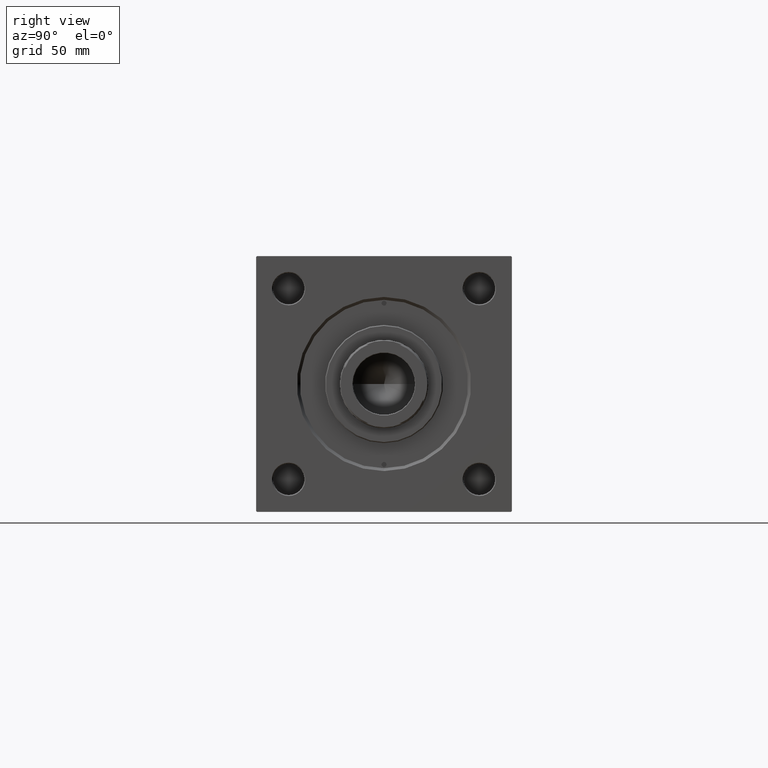
[diagram: clean part render]
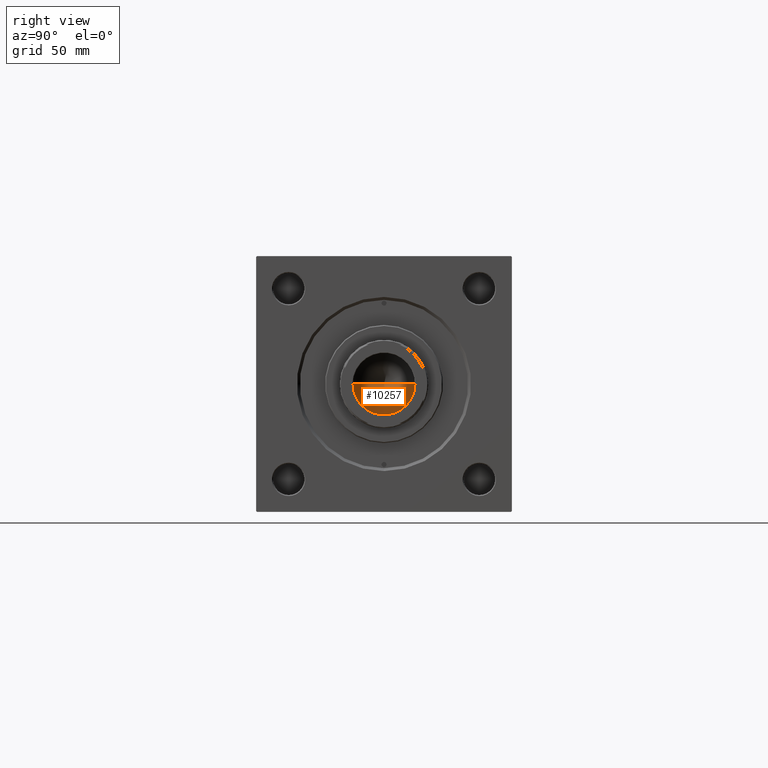
[diagram: same view with one face highlighted and labeled with its STEP entity id]
A machine part, right view. The second image highlights one B-rep face of the part: STEP entity #10257.
In plain terms, the highlighted conical surface has half-angle 59 deg.
Its self-contained STEP definition (entity closure, byte-faithful):
#9344 = CARTESIAN_POINT ( 'NONE',  ( 0.000000000000000000, 0.000000000000000000, 203.0000000000000000 ) ) ;
#9863 = FACE_OUTER_BOUND ( 'NONE', #43578, .T. ) ;
#10106 = DIRECTION ( 'NONE',  ( 1.000000000000000000, 0.000000000000000000, 0.000000000000000000 ) ) ;
#10114 = CARTESIAN_POINT ( 'NONE',  ( -15.74999999999998934, 1.928818708657080161E-15, 203.0000000000000000 ) ) ;
#10257 = ADVANCED_FACE ( 'NONE', ( #9863 ), #13053, .F. ) ;
#13053 = CONICAL_SURFACE ( 'NONE', #36832, 15.74999999999998934, 1.029744258676652313 ) ;
#14331 = DIRECTION ( 'NONE',  ( 0.8571673007021112234, 0.000000000000000000, 0.5150380749100560429 ) ) ;
#14590 = ORIENTED_EDGE ( 'NONE', *, *, #38708, .T. ) ;
#16081 = ORIENTED_EDGE ( 'NONE', *, *, #22932, .T. ) ;
#16270 = CARTESIAN_POINT ( 'NONE',  ( -15.74999999999998934, 1.928818708657080161E-15, 203.0000000000000000 ) ) ;
#16517 = LINE ( 'NONE', #16270, #44600 ) ;
#17249 = CARTESIAN_POINT ( 'NONE',  ( 15.74999999999998934, 0.000000000000000000, 203.0000000000000000 ) ) ;
#21410 = CARTESIAN_POINT ( 'NONE',  ( 0.000000000000000000, 0.000000000000000000, 203.0000000000000000 ) ) ;
#22932 = EDGE_CURVE ( 'NONE', #41130, #31578, #24328, .T. ) ;
#24328 = CIRCLE ( 'NONE', #41557, 15.74999999999998934 ) ;
#25397 = LINE ( 'NONE', #49048, #38675 ) ;
#31578 = VERTEX_POINT ( 'NONE', #10114 ) ;
#32212 = DIRECTION ( 'NONE',  ( 1.000000000000000000, 0.000000000000000000, 0.000000000000000000 ) ) ;
#32731 = DIRECTION ( 'NONE',  ( -0.000000000000000000, -0.000000000000000000, 1.000000000000000000 ) ) ;
#36586 = DIRECTION ( 'NONE',  ( -0.000000000000000000, -0.000000000000000000, 1.000000000000000000 ) ) ;
#36832 = AXIS2_PLACEMENT_3D ( 'NONE', #9344, #36586, #10106 ) ;
#38223 = VERTEX_POINT ( 'NONE', #44605 ) ;
#38675 = VECTOR ( 'NONE', #14331, 1000.000000000000000 ) ;
#38708 = EDGE_CURVE ( 'NONE', #38223, #41130, #25397, .T. ) ;
#41130 = VERTEX_POINT ( 'NONE', #17249 ) ;
#41557 = AXIS2_PLACEMENT_3D ( 'NONE', #21410, #32731, #32212 ) ;
#43578 = EDGE_LOOP ( 'NONE', ( #44111, #14590, #16081 ) ) ;
#44111 = ORIENTED_EDGE ( 'NONE', *, *, #49891, .F. ) ;
#44600 = VECTOR ( 'NONE', #47866, 1000.000000000000000 ) ;
#44605 = CARTESIAN_POINT ( 'NONE',  ( -1.584115414415908206E-14, 0.000000000000000000, 193.5364452503159214 ) ) ;
#47866 = DIRECTION ( 'NONE',  ( -0.8571673007021112234, 1.049727191138617340E-16, 0.5150380749100560429 ) ) ;
#49048 = CARTESIAN_POINT ( 'NONE',  ( 15.74999999999998934, 0.000000000000000000, 203.0000000000000000 ) ) ;
#49891 = EDGE_CURVE ( 'NONE', #38223, #31578, #16517, .T. ) ;